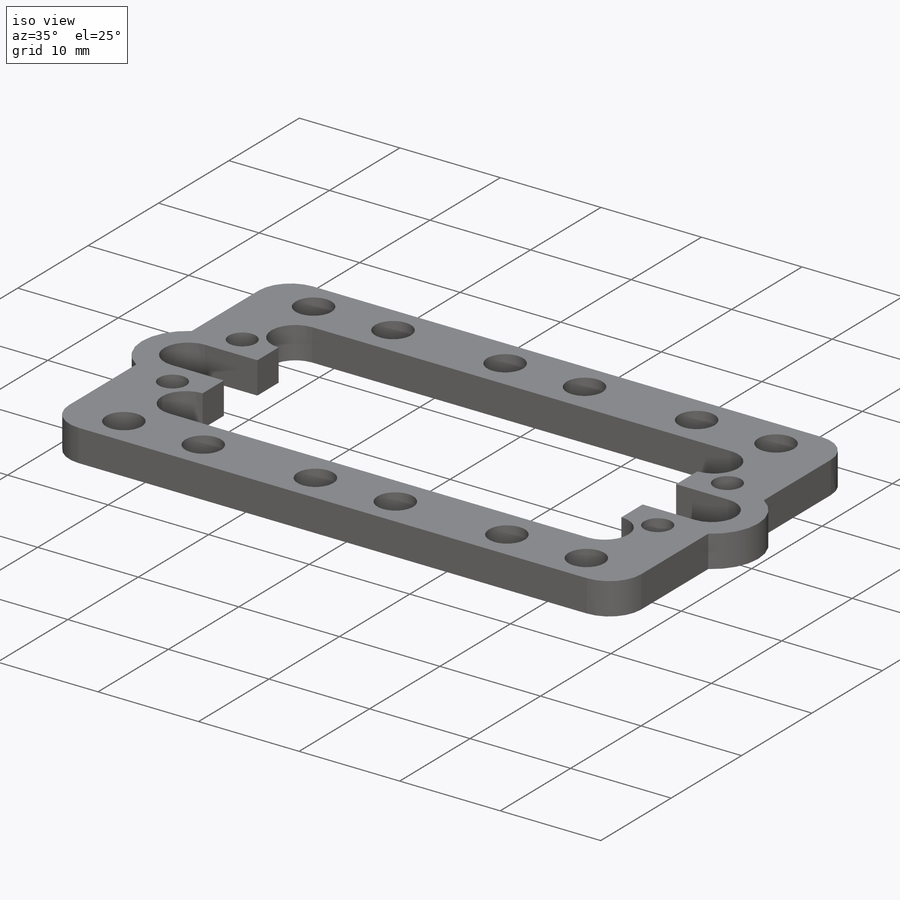
[diagram: iso view]
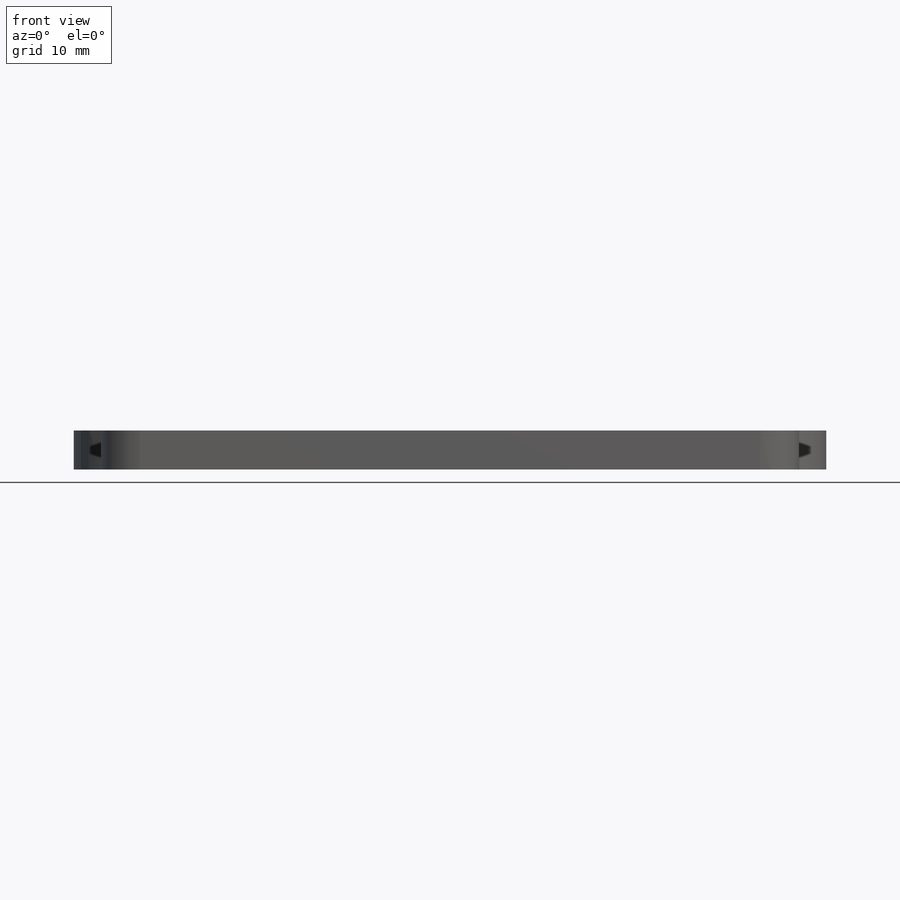
[diagram: front view]
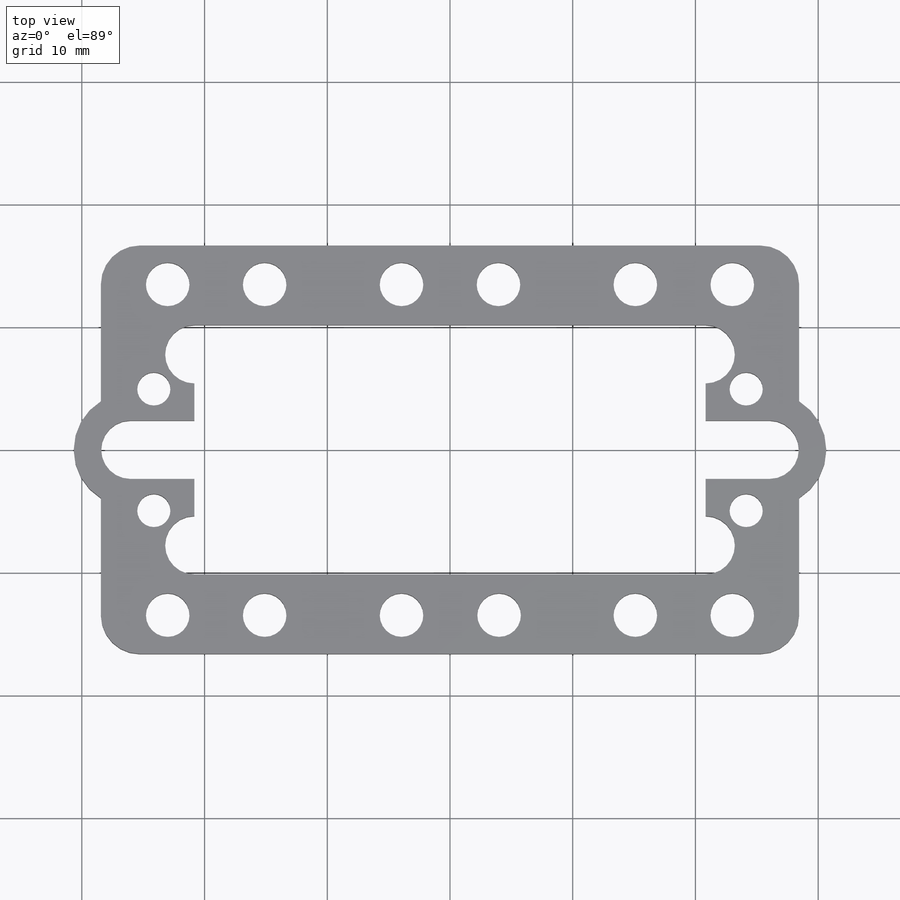
[diagram: top view]
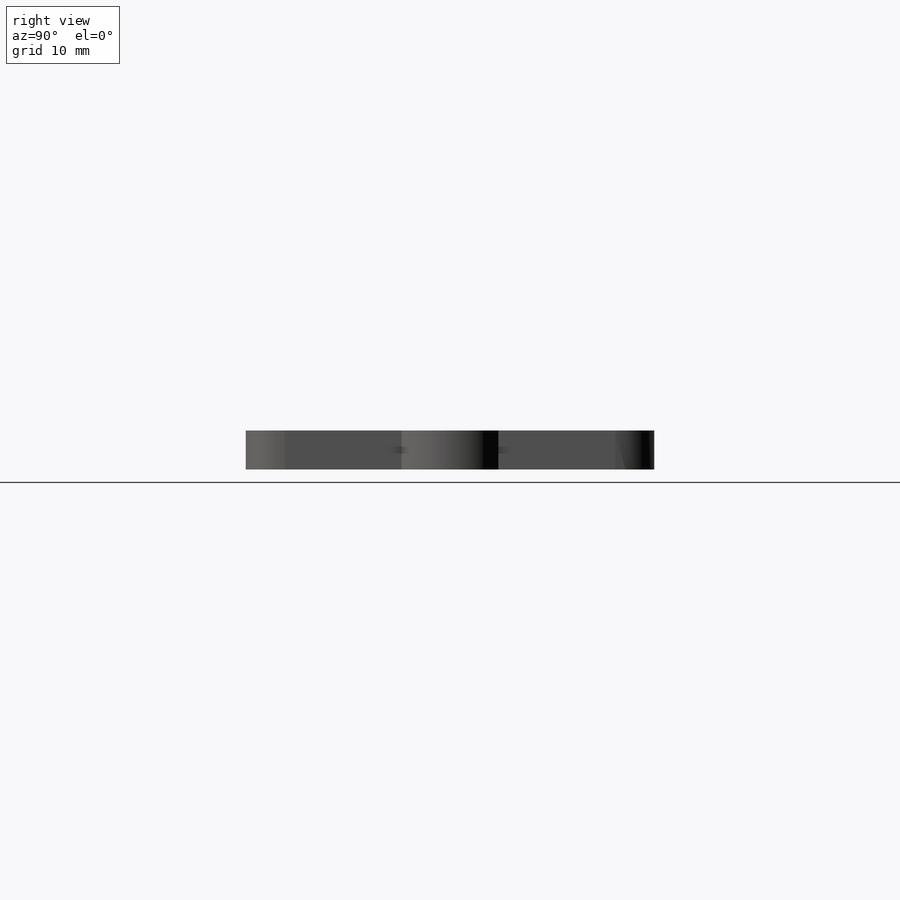
[diagram: right view]
SOLIDWORKS PART (.sldprt)
format: sldprt  version: not decoded by parser v0  size: 330,752 bytes
history: native  units: mm
features: sketch x5, thread x4, cut_extrude x2, material x1, extrude x1, hole x1, fillet x1 (+12 scaffold rows collapsed)
feature tree (27):
  scaffold x12  (default folders/planes/origin — collapsed)
  material  "Material <not specified>"
  sketch  "Sketch1"  dims[D4=4.6228mm D1=56.896mm D2=33.274mm D3=52.07mm]
  extrude  "Mass"  Depth=3.175mm
  sketch  "Sketch2"  dims[D4=1.5875mm D5=~2.38125mm D1=41.656mm D2=20.32mm D3=52.07mm]
  cut_extrude  "Servo Hole"  [1 undecoded]
  hole  "#6-32 Servo Mount"  Diameter=2.7051mm Depth=152.4mm
  sketch  "Sketch4"  dims[D1=48.26mm D2=9.906mm]
  sketch  "Sketch3"  dims[hole-wizard template sketch: 47 standard entries collapsed; hole parameters kept: c15.Tap Drill Depth=152.4mm c15.D3=~14.816244mm c15.Drill Angle=118.0deg]
  thread  "Hole Thread1"  Diameter=3.175mm  [1 undecoded]
  thread  "Hole Thread2"  Diameter=3.175mm  [1 undecoded]
  thread  "Hole Thread3"  Diameter=3.175mm  [1 undecoded]
  thread  "Hole Thread4"  Diameter=3.175mm  [1 undecoded]
  fillet  "Corners"  Radius=3.175mm
  sketch  "Sketch5"  dims[D3=3.556mm D1=26.9494mm D2=45.9994mm D4=7.8994mm D5=7.8994mm D6=11.1506mm D7=11.1506mm D8=7.8994mm D9=7.8994mm D10=11.1506mm D11=11.0998mm]
  cut_extrude  "Mounting Holes"  [1 undecoded]
decode coverage: 12 of 14 modeling features carry decoded parameters
note: ~ marks probable driven/reference dimensions
note: 6 parameter values undecoded
note: suppression state not decoded; provenance and decode notes live in map.json
